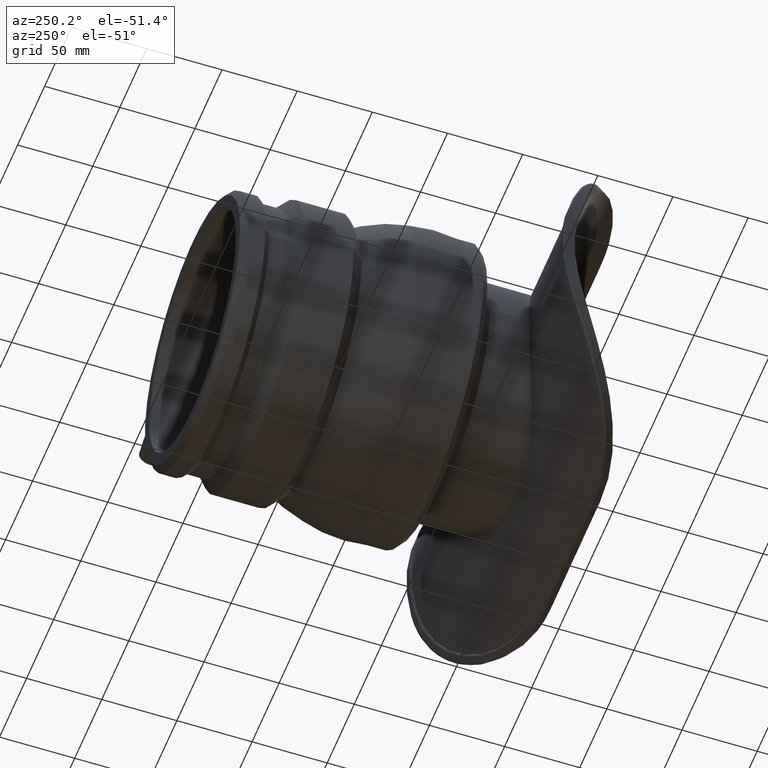
[diagram: clean part render]
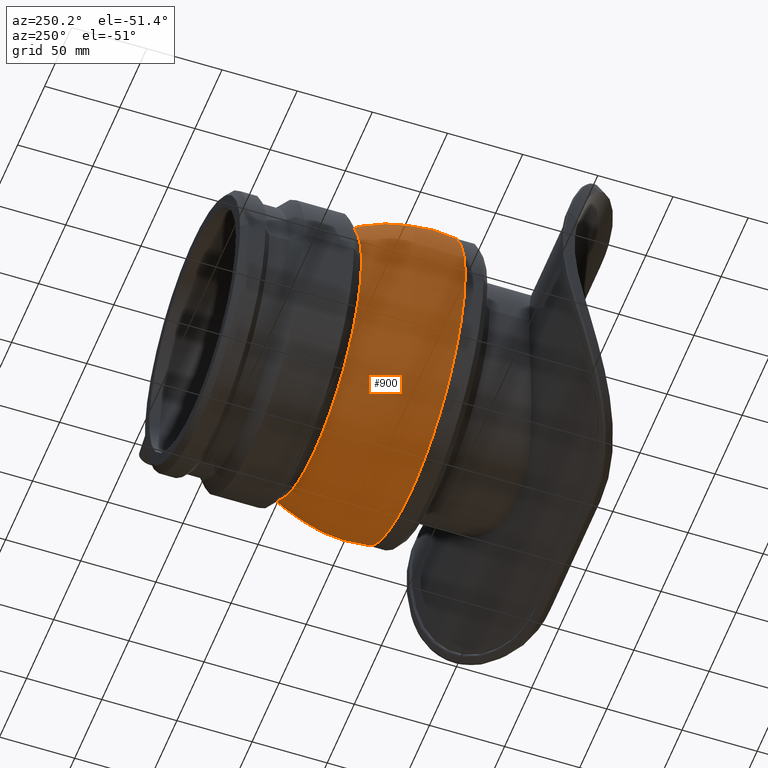
[diagram: same view with one face highlighted and labeled with its STEP entity id]
A machine part, auxiliary view. The second image highlights one B-rep face of the part: STEP entity #900.
In plain terms, the highlighted spherical surface has radius 101.1 mm.
Its self-contained STEP definition (entity closure, byte-faithful):
#85=SPHERICAL_SURFACE('',#984,101.099466751674);
#93=B_SPLINE_CURVE_WITH_KNOTS('',3,(#1461,#1462,#1463,#1464,#1465,#1466,
#1467,#1468,#1469,#1470),.UNSPECIFIED.,.F.,.F.,(4,2,2,2,4),(1.92613880133523,
2.15994972994725,2.4580023474403,2.75605496493336,2.98986589354538),
 .UNSPECIFIED.);
#143=FACE_BOUND('',#287,.T.);
#144=FACE_BOUND('',#288,.T.);
#287=EDGE_LOOP('',(#659,#660));
#288=EDGE_LOOP('',(#661));
#377=CIRCLE('',#985,100.);
#378=CIRCLE('',#986,88.);
#438=VERTEX_POINT('',#1445);
#439=VERTEX_POINT('',#1460);
#441=VERTEX_POINT('',#1492);
#523=EDGE_CURVE('',#439,#438,#93,.T.);
#527=EDGE_CURVE('',#438,#439,#377,.T.);
#528=EDGE_CURVE('',#441,#441,#378,.T.);
#659=ORIENTED_EDGE('',*,*,#523,.T.);
#660=ORIENTED_EDGE('',*,*,#527,.T.);
#661=ORIENTED_EDGE('',*,*,#528,.F.);
#900=ADVANCED_FACE('',(#143,#144),#85,.T.);
#984=AXIS2_PLACEMENT_3D('',#1490,#1129,#1130);
#985=AXIS2_PLACEMENT_3D('',#1491,#1131,#1132);
#986=AXIS2_PLACEMENT_3D('',#1493,#1133,#1134);
#1129=DIRECTION('center_axis',(6.12323399573677E-17,0.,1.));
#1130=DIRECTION('ref_axis',(1.,0.,0.));
#1131=DIRECTION('center_axis',(0.,1.,0.));
#1132=DIRECTION('ref_axis',(1.,0.,0.));
#1133=DIRECTION('center_axis',(0.,1.,0.));
#1134=DIRECTION('ref_axis',(1.,0.,0.));
#1445=CARTESIAN_POINT('',(99.8688193010284,16.16,-5.12044250221947));
#1460=CARTESIAN_POINT('',(99.8688193010284,16.16,5.12044250221947));
#1461=CARTESIAN_POINT('Ctrl Pts',(99.8688193010284,16.16,5.1204425022195));
#1462=CARTESIAN_POINT('Ctrl Pts',(99.9751473071822,16.663348774448,4.50832639343001));
#1463=CARTESIAN_POINT('Ctrl Pts',(100.066060408078,17.0945575027053,3.79324880334129));
#1464=CARTESIAN_POINT('Ctrl Pts',(100.214679202661,17.7999847243973,2.05290523415497));
#1465=CARTESIAN_POINT('Ctrl Pts',(100.255701798884,17.9950723089841,0.993508724976847));
#1466=CARTESIAN_POINT('Ctrl Pts',(100.255701798884,17.9950723089841,-0.993508724976844));
#1467=CARTESIAN_POINT('Ctrl Pts',(100.214679202662,17.7999847243973,-2.05290523415496));
#1468=CARTESIAN_POINT('Ctrl Pts',(100.066060408078,17.0945575027053,-3.79324880334129));
#1469=CARTESIAN_POINT('Ctrl Pts',(99.9751473071822,16.663348774448,-4.50832639343));
#1470=CARTESIAN_POINT('Ctrl Pts',(99.8688193010284,16.16,-5.12044250221949));
#1490=CARTESIAN_POINT('Origin',(0.,31.0295049504951,0.));
#1491=CARTESIAN_POINT('Origin',(0.,16.16,0.));
#1492=CARTESIAN_POINT('',(-88.,80.8,0.));
#1493=CARTESIAN_POINT('Origin',(0.,80.8,0.));